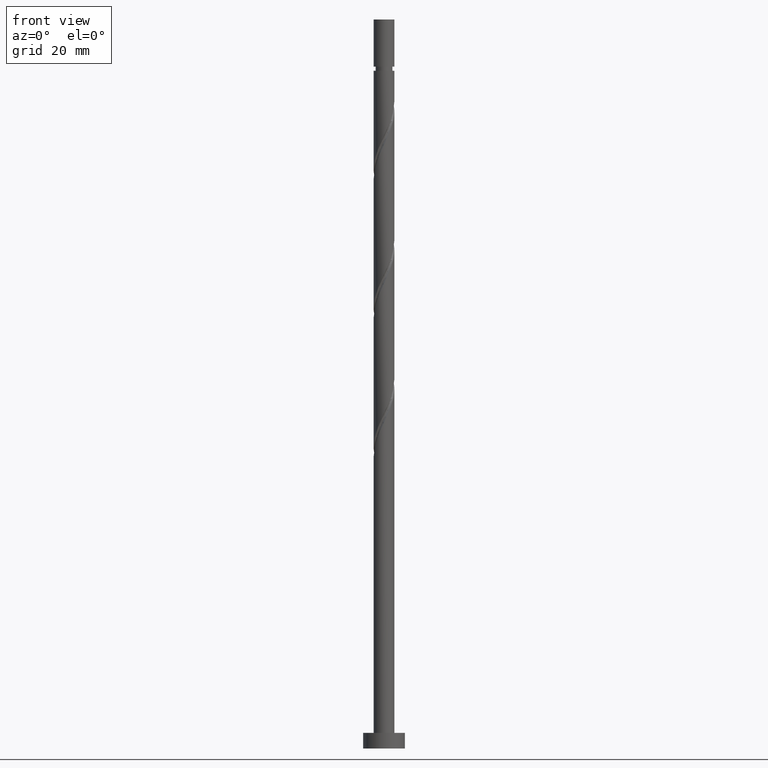
[diagram: clean part render]
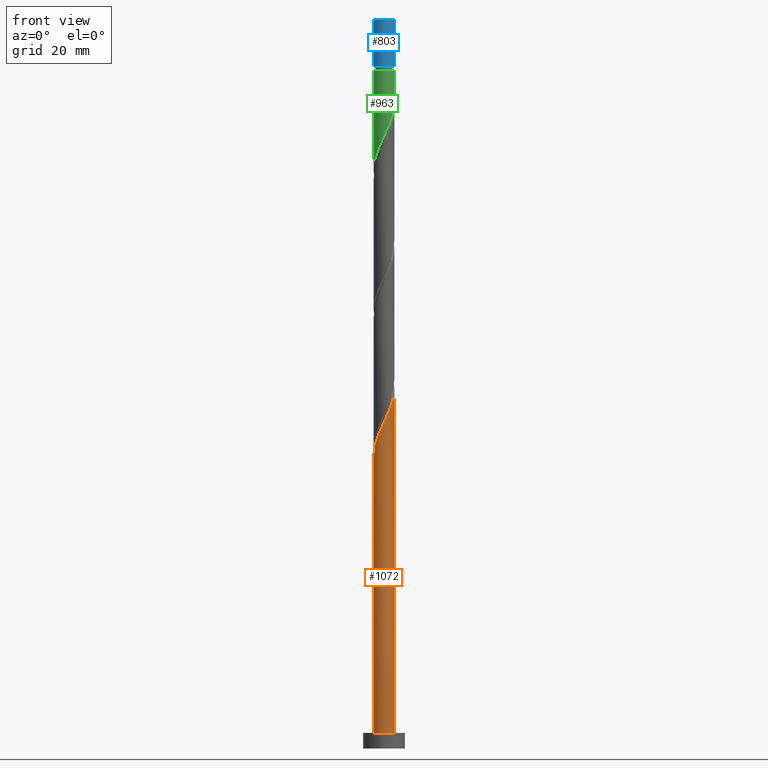
[diagram: same view with three faces highlighted in distinct colors, each labeled with its STEP entity id]
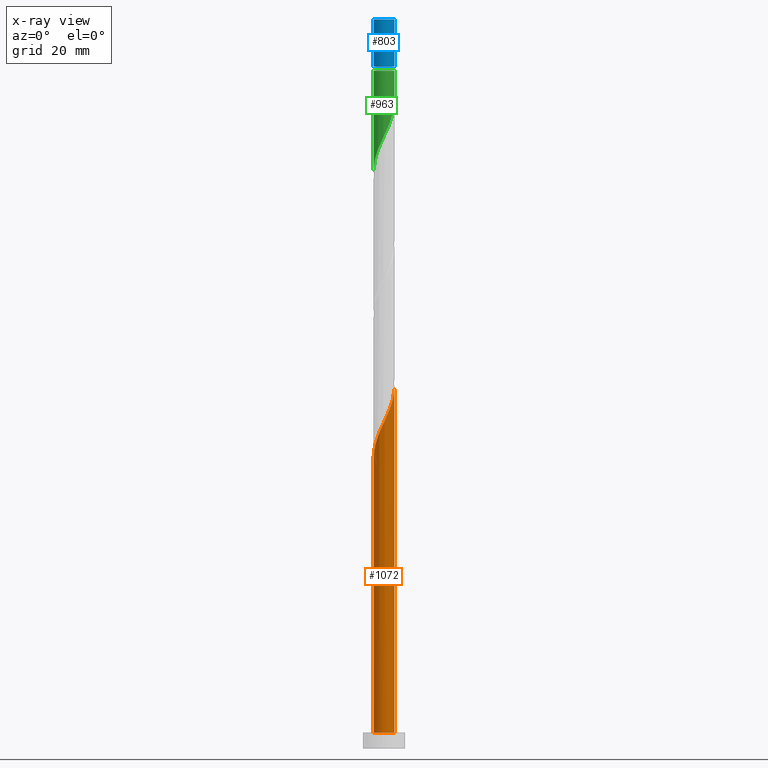
[diagram: x-ray of the same camera — body ghosted, the three highlighted faces saturated]
A machine part, front view with three faces highlighted in distinct colors.
The next image is the same camera in x-ray (body ghosted, the three faces saturated) — at least one of them is partly hidden behind the body in this view.
Their STEP definitions:

[orange] entity #1072 — the highlighted cylindrical surface (edge-blend (fillet) strip) has radius 2 mm, axis along (-0, -0, -1).
#34 = CARTESIAN_POINT ( 'NONE',  ( -2.000000000000002665, -1.376027504721667048E-15, 55.96791847989193514 ) ) ;
#40 = CARTESIAN_POINT ( 'NONE',  ( 0.6798004310727963073, -1.902776961498554797, 64.09010023192010408 ) ) ;
#45 = CARTESIAN_POINT ( 'NONE',  ( 0.1161895186125003615, -2.017223038501450461, 62.87797901979888593 ) ) ;
#49 = DIRECTION ( 'NONE',  ( 0.000000000000000000, 0.000000000000000000, 1.000000000000000000 ) ) ;
#53 = CARTESIAN_POINT ( 'NONE',  ( -1.448427499289743459, -1.408810338760221326, 59.24161538343524569 ) ) ;
#147 = ORIENTED_EDGE ( 'NONE', *, *, #1370, .F. ) ;
#161 = CARTESIAN_POINT ( 'NONE',  ( -0.7248413235775378327, -1.864029252891266752, 61.05979720161707291 ) ) ;
#173 = CARTESIAN_POINT ( 'NONE',  ( 1.394470680848407307, -1.433684595806968165, 65.90828205010194552 ) ) ;
#207 = CARTESIAN_POINT ( 'NONE',  ( 0.000000000000000000, 0.000000000000000000, 140.0000000000000000 ) ) ;
#286 = CARTESIAN_POINT ( 'NONE',  ( 1.741900447066340618, -0.9827425057002954212, 67.12040326222312103 ) ) ;
#293 =( BOUNDED_CURVE ( )  B_SPLINE_CURVE ( 2, ( #34, #1194, #1467, #1310, #1068, #420, #314, #53, #691, #1331, #161, #542, #1581, #45, #1575, #40, #434, #1180, #173, #827, #286, #1460, #807, #697, #550 ),
 .UNSPECIFIED., .F., .F. ) 
 B_SPLINE_CURVE_WITH_KNOTS ( ( 3, 2, 2, 2, 2, 2, 2, 2, 2, 2, 2, 2, 3 ),
 ( 0.05452521624175125231, 0.05681818181818176772, 0.06818181818181823228, 0.07954545454545458583, 0.09090909090909093937, 0.1022727272727272929, 0.1136363636363636465, 0.1250000000000000000, 0.1363636363636363535, 0.1477272727272727071, 0.1590909090909090606, 0.1704545454545454142, 0.1795252162417513564 ),
 .UNSPECIFIED. ) 
 CURVE ( )  GEOMETRIC_REPRESENTATION_ITEM ( )  RATIONAL_B_SPLINE_CURVE ( ( 0.9061101570135622341, 0.9072237824201443424, 0.9090909090909219392, 0.8998376744372241776, 0.9090909090909219392, 0.8998376744372241776, 0.9090909090909219392, 0.8998376744372241776, 0.9090909090909219392, 0.8998376744372241776, 0.9090909090909219392, 0.8998376744372241776, 0.9090909090909219392, 0.8998376744372241776, 0.9090909090909219392, 0.8998376744372241776, 0.9090909090909219392, 0.8998376744372241776, 0.9090909090909219392, 0.8998376744372241776, 0.9090909090909219392, 0.8998376744372241776, 0.9090909090909219392, 0.9017048011080016634, 0.9061101570135624561 ) ) 
 REPRESENTATION_ITEM ( '' )  );
#300 = DIRECTION ( 'NONE',  ( -0.000000000000000000, -0.000000000000000000, -1.000000000000000000 ) ) ;
#314 = CARTESIAN_POINT ( 'NONE',  ( -1.617545623245913999, -1.176242388590888144, 58.63555477737465793 ) ) ;
#325 = DIRECTION ( 'NONE',  ( -0.000000000000000000, -0.000000000000000000, -1.000000000000000000 ) ) ;
#351 = DIRECTION ( 'NONE',  ( 1.000000000000000000, 0.000000000000000000, 0.000000000000000000 ) ) ;
#416 = CARTESIAN_POINT ( 'NONE',  ( -2.000000000000000000, 0.000000000000000000, 3.000000000000000000 ) ) ;
#420 = CARTESIAN_POINT ( 'NONE',  ( -1.786663747202084762, -0.9436744384215548509, 58.02949417131405596 ) ) ;
#434 = CARTESIAN_POINT ( 'NONE',  ( 0.9340691933046023632, -1.768478086411958028, 64.69616083798071315 ) ) ;
#508 = CIRCLE ( 'NONE', #833, 2.000000000000000000 ) ;
#514 = VERTEX_POINT ( 'NONE', #416 ) ;
#542 = CARTESIAN_POINT ( 'NONE',  ( -0.4568343776401063705, -1.968245701812304072, 61.66585780767768910 ) ) ;
#550 = CARTESIAN_POINT ( 'NONE',  ( 2.000000000000002665, 1.278808170148940589E-15, 69.30125181322529215 ) ) ;
#565 = EDGE_CURVE ( 'NONE', #1384, #514, #1190, .T. ) ;
#630 = CARTESIAN_POINT ( 'NONE',  ( 2.000000000000000000, 2.449293598294706414E-16, 3.000000000000000000 ) ) ;
#681 = VECTOR ( 'NONE', #1340, 1000.000000000000000 ) ;
#691 = CARTESIAN_POINT ( 'NONE',  ( -1.220637884402356210, -1.584311571365225380, 59.84767598949587608 ) ) ;
#697 = CARTESIAN_POINT ( 'NONE',  ( 2.000000000000003553, -0.2290578547702446788, 68.81529186025396427 ) ) ;
#718 = CARTESIAN_POINT ( 'NONE',  ( 2.000000000000000000, 2.449293598294706414E-16, 140.0000000000000000 ) ) ;
#776 = VERTEX_POINT ( 'NONE', #630 ) ;
#807 = CARTESIAN_POINT ( 'NONE',  ( 1.948211798543802997, -0.4521844623765087223, 68.33252447434435339 ) ) ;
#827 = CARTESIAN_POINT ( 'NONE',  ( 1.600603406160406417, -1.233189980288574850, 66.51434265616252617 ) ) ;
#833 = AXIS2_PLACEMENT_3D ( 'NONE', #1073, #49, #351 ) ;
#839 = DIRECTION ( 'NONE',  ( -1.000000000000000000, 0.000000000000000000, 0.000000000000000000 ) ) ;
#880 = AXIS2_PLACEMENT_3D ( 'NONE', #207, #325, #839 ) ;
#1026 = VERTEX_POINT ( 'NONE', #1462 ) ;
#1043 = VECTOR ( 'NONE', #300, 1000.000000000000000 ) ;
#1052 = CARTESIAN_POINT ( 'NONE',  ( -2.000000000000000000, 0.000000000000000000, 140.0000000000000000 ) ) ;
#1062 = CARTESIAN_POINT ( 'NONE',  ( -2.000000000000002665, -1.376027504721667048E-15, 55.96791847989194224 ) ) ;
#1068 = CARTESIAN_POINT ( 'NONE',  ( -1.883409435608319527, -0.6728810428757548978, 57.42343356525344689 ) ) ;
#1072 = ADVANCED_FACE ( 'NONE', ( #1224 ), #1597, .T. ) ;
#1073 = CARTESIAN_POINT ( 'NONE',  ( 0.000000000000000000, 0.000000000000000000, 3.000000000000000000 ) ) ;
#1180 = CARTESIAN_POINT ( 'NONE',  ( 1.188337955536408641, -1.634179211325360370, 65.30222144404132223 ) ) ;
#1190 = LINE ( 'NONE', #1052, #1043 ) ;
#1194 = CARTESIAN_POINT ( 'NONE',  ( -2.000000000000003109, -0.05755105304764365770, 56.09001648461016742 ) ) ;
#1224 = FACE_OUTER_BOUND ( 'NONE', #1662, .T. ) ;
#1310 = CARTESIAN_POINT ( 'NONE',  ( -1.980155124014553403, -0.4020876473299553333, 56.81737295919283071 ) ) ;
#1331 = CARTESIAN_POINT ( 'NONE',  ( -0.9928482695149690729, -1.759812803970229655, 60.45373659555647095 ) ) ;
#1340 = DIRECTION ( 'NONE',  ( -0.000000000000000000, -0.000000000000000000, -1.000000000000000000 ) ) ;
#1370 = EDGE_CURVE ( 'NONE', #1384, #1026, #293, .T. ) ;
#1384 = VERTEX_POINT ( 'NONE', #1062 ) ;
#1408 = ORIENTED_EDGE ( 'NONE', *, *, #1449, .F. ) ;
#1449 = EDGE_CURVE ( 'NONE', #1026, #776, #1611, .T. ) ;
#1460 = CARTESIAN_POINT ( 'NONE',  ( 1.883197487972274375, -0.7322950311120149935, 67.72646386828373011 ) ) ;
#1462 = CARTESIAN_POINT ( 'NONE',  ( 2.000000000000002665, 1.278808170148940589E-15, 69.30125181322529215 ) ) ;
#1467 = CARTESIAN_POINT ( 'NONE',  ( -1.996690616564942733, -0.1150068768444767187, 56.21131235313223584 ) ) ;
#1539 = ORIENTED_EDGE ( 'NONE', *, *, #1634, .T. ) ;
#1575 = CARTESIAN_POINT ( 'NONE',  ( 0.3979949748426482858, -1.960000000000002851, 63.48403962585952343 ) ) ;
#1581 = CARTESIAN_POINT ( 'NONE',  ( -0.1703224295138029420, -1.992734370156877821, 62.27191841373829106 ) ) ;
#1597 = CYLINDRICAL_SURFACE ( 'NONE', #880, 2.000000000000000000 ) ;
#1611 = LINE ( 'NONE', #718, #681 ) ;
#1634 = EDGE_CURVE ( 'NONE', #514, #776, #508, .T. ) ;
#1653 = ORIENTED_EDGE ( 'NONE', *, *, #565, .T. ) ;
#1662 = EDGE_LOOP ( 'NONE', ( #1408, #147, #1653, #1539 ) ) ;

[blue] entity #803 — the highlighted cylindrical surface (edge-blend (fillet) strip) has radius 2 mm, axis along (-0, -0, -1).
#128 = DIRECTION ( 'NONE',  ( -1.000000000000000000, 0.000000000000000000, 0.000000000000000000 ) ) ;
#131 = ORIENTED_EDGE ( 'NONE', *, *, #1570, .T. ) ;
#140 = ORIENTED_EDGE ( 'NONE', *, *, #678, .F. ) ;
#142 = VECTOR ( 'NONE', #587, 1000.000000000000000 ) ;
#205 = CARTESIAN_POINT ( 'NONE',  ( -2.000000000000000000, 0.000000000000000000, 140.0000000000000000 ) ) ;
#262 = CARTESIAN_POINT ( 'NONE',  ( 0.000000000000000000, 0.000000000000000000, 140.0000000000000000 ) ) ;
#365 = EDGE_LOOP ( 'NONE', ( #385, #1303, #131, #140 ) ) ;
#385 = ORIENTED_EDGE ( 'NONE', *, *, #1443, .F. ) ;
#457 = CARTESIAN_POINT ( 'NONE',  ( 2.000000000000000000, 2.449293598294706414E-16, 140.0000000000000000 ) ) ;
#560 = CARTESIAN_POINT ( 'NONE',  ( 2.000000000000000000, 2.449293598294706414E-16, 140.0000000000000000 ) ) ;
#587 = DIRECTION ( 'NONE',  ( -0.000000000000000000, -0.000000000000000000, -1.000000000000000000 ) ) ;
#659 = VERTEX_POINT ( 'NONE', #1174 ) ;
#668 = DIRECTION ( 'NONE',  ( 0.000000000000000000, 0.000000000000000000, 1.000000000000000000 ) ) ;
#678 = EDGE_CURVE ( 'NONE', #1546, #1027, #1605, .T. ) ;
#694 = DIRECTION ( 'NONE',  ( -0.000000000000000000, -0.000000000000000000, -1.000000000000000000 ) ) ;
#725 = CIRCLE ( 'NONE', #1477, 2.000000000000000000 ) ;
#744 = AXIS2_PLACEMENT_3D ( 'NONE', #262, #1289, #1033 ) ;
#803 = ADVANCED_FACE ( 'NONE', ( #1001 ), #1407, .T. ) ;
#845 = LINE ( 'NONE', #205, #1232 ) ;
#913 = VERTEX_POINT ( 'NONE', #560 ) ;
#932 = CARTESIAN_POINT ( 'NONE',  ( 0.000000000000000000, 0.000000000000000000, 140.0000000000000000 ) ) ;
#945 = DIRECTION ( 'NONE',  ( 1.000000000000000000, 0.000000000000000000, 0.000000000000000000 ) ) ;
#959 = AXIS2_PLACEMENT_3D ( 'NONE', #1266, #1545, #128 ) ;
#960 = CARTESIAN_POINT ( 'NONE',  ( -1.999999999999996669, 0.000000000000000000, 130.9507062925261778 ) ) ;
#1001 = FACE_OUTER_BOUND ( 'NONE', #365, .T. ) ;
#1027 = VERTEX_POINT ( 'NONE', #960 ) ;
#1033 = DIRECTION ( 'NONE',  ( -1.000000000000000000, 0.000000000000000000, 0.000000000000000000 ) ) ;
#1085 = CARTESIAN_POINT ( 'NONE',  ( 1.999999999999996669, 2.449293598294703949E-16, 130.9507062925261778 ) ) ;
#1093 = LINE ( 'NONE', #457, #142 ) ;
#1174 = CARTESIAN_POINT ( 'NONE',  ( -2.000000000000000000, 0.000000000000000000, 140.0000000000000000 ) ) ;
#1232 = VECTOR ( 'NONE', #694, 1000.000000000000000 ) ;
#1266 = CARTESIAN_POINT ( 'NONE',  ( 0.000000000000000000, 0.000000000000000000, 130.9507062925261778 ) ) ;
#1289 = DIRECTION ( 'NONE',  ( -0.000000000000000000, -0.000000000000000000, -1.000000000000000000 ) ) ;
#1303 = ORIENTED_EDGE ( 'NONE', *, *, #1344, .F. ) ;
#1344 = EDGE_CURVE ( 'NONE', #659, #913, #725, .T. ) ;
#1407 = CYLINDRICAL_SURFACE ( 'NONE', #744, 2.000000000000000000 ) ;
#1443 = EDGE_CURVE ( 'NONE', #913, #1546, #1093, .T. ) ;
#1477 = AXIS2_PLACEMENT_3D ( 'NONE', #932, #668, #945 ) ;
#1545 = DIRECTION ( 'NONE',  ( -0.000000000000000000, -0.000000000000000000, -1.000000000000000000 ) ) ;
#1546 = VERTEX_POINT ( 'NONE', #1085 ) ;
#1570 = EDGE_CURVE ( 'NONE', #659, #1027, #845, .T. ) ;
#1605 = CIRCLE ( 'NONE', #959, 1.999999999999996669 ) ;

[green] entity #963 — the highlighted cylindrical surface (edge-blend (fillet) strip) has radius 2 mm, axis along (-0, -0, -1).
#58 = CARTESIAN_POINT ( 'NONE',  ( -1.188337955536407309, -1.634179211325358372, 114.9991911410110106 ) ) ;
#67 = CARTESIAN_POINT ( 'NONE',  ( -0.3979949748426485634, -1.959999999999999964, 116.8173729591928378 ) ) ;
#163 = AXIS2_PLACEMENT_3D ( 'NONE', #1485, #1074, #1363 ) ;
#176 = CARTESIAN_POINT ( 'NONE',  ( -0.1161895186125011109, -2.017223038501448240, 117.4234335652534043 ) ) ;
#182 = CIRCLE ( 'NONE', #163, 1.999999999999996669 ) ;
#183 = CARTESIAN_POINT ( 'NONE',  ( 1.996690616564939846, -0.1150068768444773709, 124.0901002319201041 ) ) ;
#191 = CARTESIAN_POINT ( 'NONE',  ( -1.741900447066338176, -0.9827425057002935338, 113.1810093228291976 ) ) ;
#200 = CARTESIAN_POINT ( 'NONE',  ( 1.883409435608316418, -0.6728810428757545647, 122.8779790197989001 ) ) ;
#202 = DIRECTION ( 'NONE',  ( -0.000000000000000000, -0.000000000000000000, -1.000000000000000000 ) ) ;
#301 = CARTESIAN_POINT ( 'NONE',  ( 1.617545623245912001, -1.176242388590886589, 121.6658578076776820 ) ) ;
#316 = CARTESIAN_POINT ( 'NONE',  ( 1.999999999999996669, 2.449293598294703949E-16, 130.1507062925261664 ) ) ;
#360 = DIRECTION ( 'NONE',  ( -0.000000000000000000, -0.000000000000000000, -1.000000000000000000 ) ) ;
#429 = CARTESIAN_POINT ( 'NONE',  ( -1.394470680848406197, -1.433684595806965500, 114.3931305349504015 ) ) ;
#444 = CARTESIAN_POINT ( 'NONE',  ( 1.448427499289742126, -1.408810338760219993, 121.0597972016170729 ) ) ;
#445 = EDGE_CURVE ( 'NONE', #1025, #767, #1512, .T. ) ;
#450 = EDGE_CURVE ( 'NONE', #1561, #1438, #1521, .T. ) ;
#453 = CARTESIAN_POINT ( 'NONE',  ( -0.9340691933046018081, -1.768478086411955363, 115.6052517470716339 ) ) ;
#463 = DIRECTION ( 'NONE',  ( -0.000000000000000000, -0.000000000000000000, -1.000000000000000000 ) ) ;
#476 = CARTESIAN_POINT ( 'NONE',  ( 0.1703224295138018596, -1.992734370156875157, 118.0294941713140418 ) ) ;
#526 = ORIENTED_EDGE ( 'NONE', *, *, #445, .F. ) ;
#642 = EDGE_LOOP ( 'NONE', ( #526, #1517, #1290, #757 ) ) ;
#701 = CARTESIAN_POINT ( 'NONE',  ( 2.000000000000000000, 4.786182625118871402E-16, 124.3334941051603835 ) ) ;
#702 = CYLINDRICAL_SURFACE ( 'NONE', #1342, 2.000000000000000000 ) ;
#707 = CARTESIAN_POINT ( 'NONE',  ( -1.948211798543800333, -0.4521844623765076676, 111.9688881107079652 ) ) ;
#757 = ORIENTED_EDGE ( 'NONE', *, *, #1614, .F. ) ;
#767 = VERTEX_POINT ( 'NONE', #1555 ) ;
#816 = CARTESIAN_POINT ( 'NONE',  ( -2.000000000000000444, 1.884559408640555319E-15, 111.0001607718270407 ) ) ;
#823 = CARTESIAN_POINT ( 'NONE',  ( 0.7248413235775362784, -1.864029252891264310, 119.2416153834352457 ) ) ;
#824 = CARTESIAN_POINT ( 'NONE',  ( 0.000000000000000000, 0.000000000000000000, 140.0000000000000000 ) ) ;
#920 = EDGE_CURVE ( 'NONE', #1025, #1561, #182, .T. ) ;
#942 = CARTESIAN_POINT ( 'NONE',  ( 0.9928482695149670745, -1.759812803970228101, 119.8476759894958548 ) ) ;
#963 = ADVANCED_FACE ( 'NONE', ( #1464 ), #702, .T. ) ;
#1006 = CARTESIAN_POINT ( 'NONE',  ( 2.000000000000000000, 2.449293598294706414E-16, 140.0000000000000000 ) ) ;
#1025 = VERTEX_POINT ( 'NONE', #316 ) ;
#1074 = DIRECTION ( 'NONE',  ( -0.000000000000000000, -0.000000000000000000, -1.000000000000000000 ) ) ;
#1095 =( BOUNDED_CURVE ( )  B_SPLINE_CURVE ( 2, ( #701, #1204, #183, #1578, #200, #1355, #301, #444, #1504, #942, #823, #1457, #476, #176, #67, #1335, #453, #58, #429, #1463, #191, #1250, #707, #1211, #816 ),
 .UNSPECIFIED., .F., .F. ) 
 B_SPLINE_CURVE_WITH_KNOTS ( ( 3, 2, 2, 2, 2, 2, 2, 2, 2, 2, 2, 2, 3 ),
 ( 0.3045252162417514952, 0.3068181818181818232, 0.3181818181818181768, 0.3295454545454545303, 0.3409090909090908839, 0.3522727272727272929, 0.3636363636363636465, 0.3750000000000000000, 0.3863636363636363535, 0.3977272727272727071, 0.4090909090909091161, 0.4204545454545454697, 0.4295252162417515507 ),
 .UNSPECIFIED. ) 
 CURVE ( )  GEOMETRIC_REPRESENTATION_ITEM ( )  RATIONAL_B_SPLINE_CURVE ( ( 0.9061101570135570160, 0.9072237824201392353, 0.9090909090909164991, 0.8998376744372188485, 0.9090909090909164991, 0.8998376744372188485, 0.9090909090909164991, 0.8998376744372188485, 0.9090909090909164991, 0.8998376744372188485, 0.9090909090909164991, 0.8998376744372188485, 0.9090909090909164991, 0.8998376744372188485, 0.9090909090909164991, 0.8998376744372188485, 0.9090909090909164991, 0.8998376744372188485, 0.9090909090909164991, 0.8998376744372188485, 0.9090909090909164991, 0.8998376744372188485, 0.9090909090909164991, 0.9017048011079961123, 0.9061101570135570160 ) ) 
 REPRESENTATION_ITEM ( '' )  );
#1203 = VECTOR ( 'NONE', #463, 1000.000000000000000 ) ;
#1204 = CARTESIAN_POINT ( 'NONE',  ( 2.000000000000000000, -0.05755105304764916024, 124.2113961004421299 ) ) ;
#1211 = CARTESIAN_POINT ( 'NONE',  ( -2.000000000000002220, -0.2290578547702405987, 111.4861207247983828 ) ) ;
#1250 = CARTESIAN_POINT ( 'NONE',  ( -1.883197487972271711, -0.7322950311120142164, 112.5749487167686169 ) ) ;
#1290 = ORIENTED_EDGE ( 'NONE', *, *, #450, .T. ) ;
#1335 = CARTESIAN_POINT ( 'NONE',  ( -0.6798004310727959743, -1.902776961498551911, 116.2113123531322287 ) ) ;
#1336 = DIRECTION ( 'NONE',  ( -1.000000000000000000, 0.000000000000000000, 0.000000000000000000 ) ) ;
#1342 = AXIS2_PLACEMENT_3D ( 'NONE', #824, #202, #1336 ) ;
#1355 = CARTESIAN_POINT ( 'NONE',  ( 1.786663747202082320, -0.9436744384215538517, 122.2719184137383195 ) ) ;
#1363 = DIRECTION ( 'NONE',  ( -1.000000000000000000, 0.000000000000000000, 0.000000000000000000 ) ) ;
#1438 = VERTEX_POINT ( 'NONE', #1483 ) ;
#1457 = CARTESIAN_POINT ( 'NONE',  ( 0.4568343776401059264, -1.968245701812300963, 118.6355547773746508 ) ) ;
#1463 = CARTESIAN_POINT ( 'NONE',  ( -1.600603406160405084, -1.233189980288572851, 113.7870699288898066 ) ) ;
#1464 = FACE_OUTER_BOUND ( 'NONE', #642, .T. ) ;
#1483 = CARTESIAN_POINT ( 'NONE',  ( -2.000000000000000444, 1.884559408640555319E-15, 111.0001607718270407 ) ) ;
#1485 = CARTESIAN_POINT ( 'NONE',  ( 0.000000000000000000, 0.000000000000000000, 130.1507062925261664 ) ) ;
#1504 = CARTESIAN_POINT ( 'NONE',  ( 1.220637884402353990, -1.584311571365224047, 120.4537365955564354 ) ) ;
#1512 = LINE ( 'NONE', #1006, #1585 ) ;
#1517 = ORIENTED_EDGE ( 'NONE', *, *, #920, .T. ) ;
#1521 = LINE ( 'NONE', #1613, #1203 ) ;
#1555 = CARTESIAN_POINT ( 'NONE',  ( 2.000000000000000000, 4.786182625118871402E-16, 124.3334941051603835 ) ) ;
#1561 = VERTEX_POINT ( 'NONE', #1595 ) ;
#1578 = CARTESIAN_POINT ( 'NONE',  ( 1.980155124014551182, -0.4020876473299556109, 123.4840396258595092 ) ) ;
#1585 = VECTOR ( 'NONE', #360, 1000.000000000000000 ) ;
#1595 = CARTESIAN_POINT ( 'NONE',  ( -1.999999999999996669, 0.000000000000000000, 130.1507062925261664 ) ) ;
#1613 = CARTESIAN_POINT ( 'NONE',  ( -2.000000000000000000, 0.000000000000000000, 140.0000000000000000 ) ) ;
#1614 = EDGE_CURVE ( 'NONE', #767, #1438, #1095, .T. ) ;